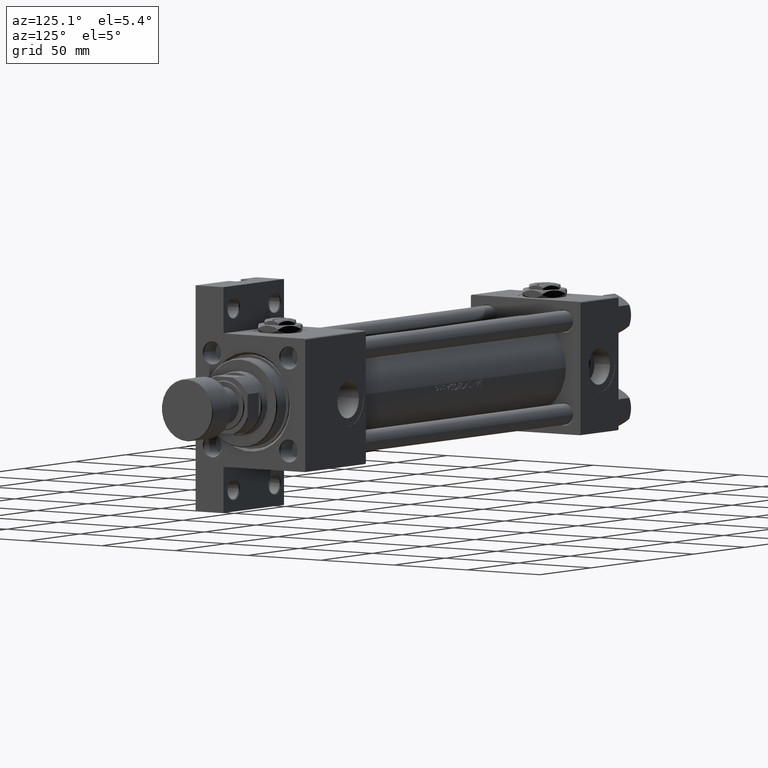
[diagram: clean part render]
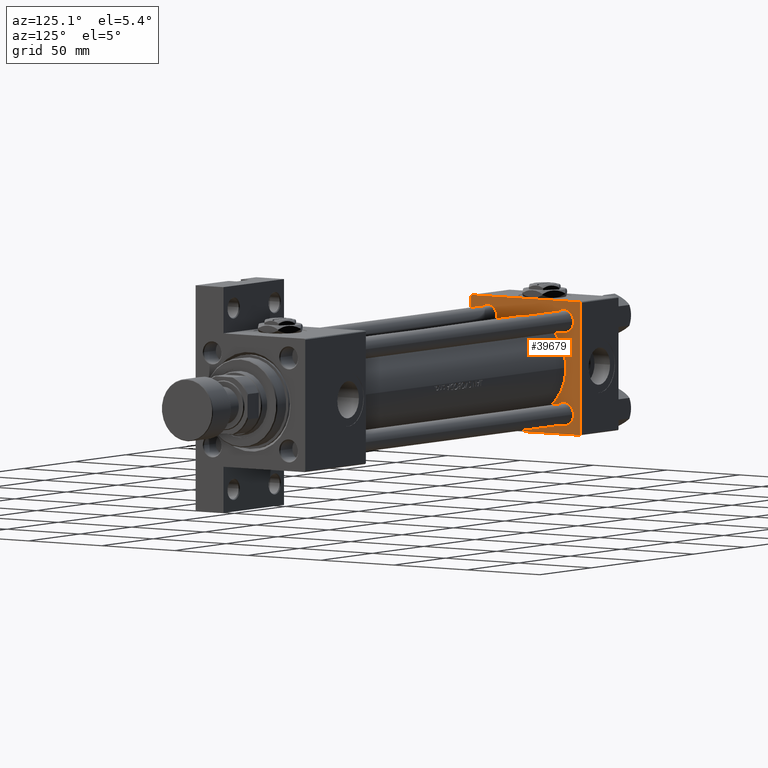
[diagram: same view with one face highlighted and labeled with its STEP entity id]
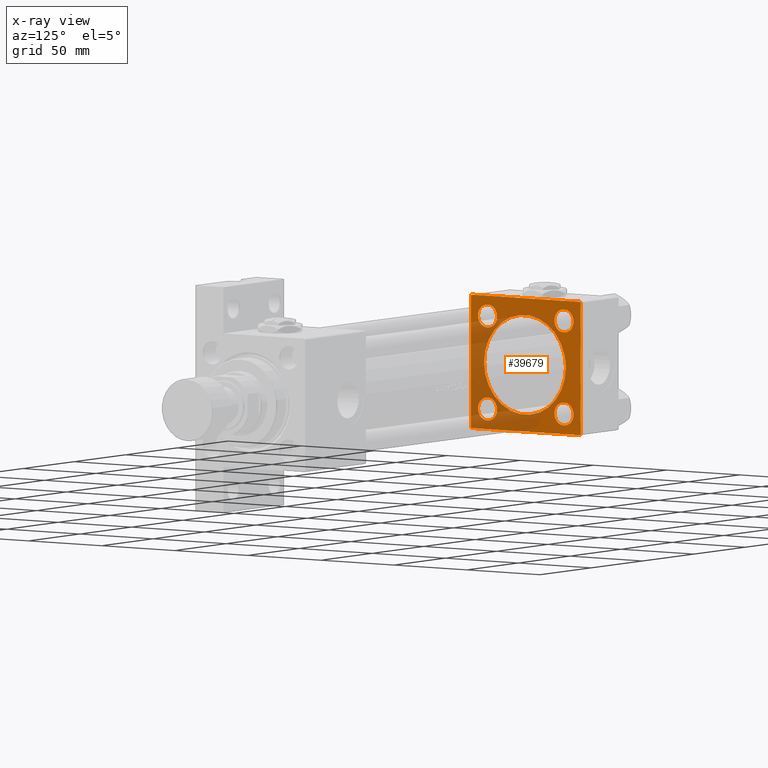
[diagram: x-ray of the same camera — body ghosted, the highlighted face saturated]
A machine part, auxiliary view. The second image highlights one B-rep face of the part: STEP entity #39679.
The next image is the same camera in x-ray: the body ghosted, the highlighted face saturated — about 38% of this face is hidden behind the body in this view.
In plain terms, the highlighted planar face has unit normal (-1, 0, -0).
Its self-contained STEP definition (entity closure, byte-faithful):
#209 = ORIENTED_EDGE ( 'NONE', *, *, #2922, .T. ) ;
#295 = CIRCLE ( 'NONE', #33496, 28.00000000000000000 ) ;
#547 = CARTESIAN_POINT ( 'NONE',  ( 37.00000000000000000, 37.49999999999999289, 37.00000000000000000 ) ) ;
#949 = CARTESIAN_POINT ( 'NONE',  ( 37.00000000000000711, 6.123233995736772199E-17, 27.50000000000000000 ) ) ;
#1322 = DIRECTION ( 'NONE',  ( 0.000000000000000000, 0.000000000000000000, -1.000000000000000000 ) ) ;
#1503 = FACE_OUTER_BOUND ( 'NONE', #11610, .T. ) ;
#1526 = ORIENTED_EDGE ( 'NONE', *, *, #33382, .T. ) ;
#1559 = ORIENTED_EDGE ( 'NONE', *, *, #33772, .T. ) ;
#1842 = ORIENTED_EDGE ( 'NONE', *, *, #2195, .T. ) ;
#2068 = CARTESIAN_POINT ( 'NONE',  ( 37.00000000000000000, -26.14999999999999147, 26.15000000000000924 ) ) ;
#2195 = EDGE_CURVE ( 'NONE', #14661, #13098, #37966, .T. ) ;
#2257 = CARTESIAN_POINT ( 'NONE',  ( 37.00000000000000000, 0.000000000000000000, 0.000000000000000000 ) ) ;
#2750 = EDGE_CURVE ( 'NONE', #30225, #12339, #43223, .T. ) ;
#2922 = EDGE_CURVE ( 'NONE', #42505, #34100, #6413, .T. ) ;
#2967 = EDGE_LOOP ( 'NONE', ( #11767, #11277 ) ) ;
#2994 = DIRECTION ( 'NONE',  ( -1.000000000000000000, 0.000000000000000000, -0.000000000000000000 ) ) ;
#3259 = DIRECTION ( 'NONE',  ( -1.000000000000000000, 0.000000000000000000, -0.000000000000000000 ) ) ;
#3271 = DIRECTION ( 'NONE',  ( 1.000000000000000000, -0.000000000000000000, 0.000000000000000000 ) ) ;
#3323 = CIRCLE ( 'NONE', #34114, 6.500000000000008882 ) ;
#3336 = AXIS2_PLACEMENT_3D ( 'NONE', #2257, #9371, #6319 ) ;
#3953 = ORIENTED_EDGE ( 'NONE', *, *, #25822, .T. ) ;
#4446 = AXIS2_PLACEMENT_3D ( 'NONE', #38273, #3271, #49436 ) ;
#4570 = LINE ( 'NONE', #18858, #16176 ) ;
#4859 = CIRCLE ( 'NONE', #28348, 6.500000000000085265 ) ;
#5051 = CARTESIAN_POINT ( 'NONE',  ( 37.00000000000000000, 37.49999999999999289, 37.50000000000000000 ) ) ;
#5411 = CARTESIAN_POINT ( 'NONE',  ( 37.00000000000000000, 37.49999999999999289, -36.99999999999998579 ) ) ;
#6038 = LINE ( 'NONE', #14163, #28995 ) ;
#6178 = ORIENTED_EDGE ( 'NONE', *, *, #35986, .F. ) ;
#6319 = DIRECTION ( 'NONE',  ( -0.000000000000000000, 0.000000000000000000, 1.000000000000000000 ) ) ;
#6413 = LINE ( 'NONE', #6671, #12081 ) ;
#6572 = CARTESIAN_POINT ( 'NONE',  ( 37.00000000000000000, -26.14999999999999147, -26.15000000000000924 ) ) ;
#6671 = CARTESIAN_POINT ( 'NONE',  ( 37.00000000000000000, -37.00000000000002132, -37.50000000000000711 ) ) ;
#7380 = CARTESIAN_POINT ( 'NONE',  ( 37.00000000000000000, 26.14999999999999858, 19.64999999999991331 ) ) ;
#7545 = DIRECTION ( 'NONE',  ( 0.000000000000000000, 0.000000000000000000, 1.000000000000000000 ) ) ;
#7695 = CIRCLE ( 'NONE', #4446, 28.00000000000000000 ) ;
#7944 = CIRCLE ( 'NONE', #13593, 6.500000000000085265 ) ;
#8546 = DIRECTION ( 'NONE',  ( -1.000000000000000000, 0.000000000000000000, -0.000000000000000000 ) ) ;
#8853 = DIRECTION ( 'NONE',  ( 0.000000000000000000, -1.000000000000000000, -9.251858538542971581E-17 ) ) ;
#9184 = EDGE_LOOP ( 'NONE', ( #50075, #12120 ) ) ;
#9371 = DIRECTION ( 'NONE',  ( -1.000000000000000000, 0.000000000000000000, -0.000000000000000000 ) ) ;
#9399 = DIRECTION ( 'NONE',  ( -1.000000000000000000, 0.000000000000000000, -0.000000000000000000 ) ) ;
#9519 = AXIS2_PLACEMENT_3D ( 'NONE', #2068, #14767, #29970 ) ;
#9579 = DIRECTION ( 'NONE',  ( 1.000000000000000000, -0.000000000000000000, 0.000000000000000000 ) ) ;
#9667 = CIRCLE ( 'NONE', #27513, 6.500000000000002665 ) ;
#9914 = EDGE_LOOP ( 'NONE', ( #1559, #3953 ) ) ;
#10349 = DIRECTION ( 'NONE',  ( 0.000000000000000000, 9.251858538542971581E-17, -1.000000000000000000 ) ) ;
#10408 = DIRECTION ( 'NONE',  ( -1.000000000000000000, 0.000000000000000000, -0.000000000000000000 ) ) ;
#10449 = AXIS2_PLACEMENT_3D ( 'NONE', #46097, #8546, #7545 ) ;
#10490 = EDGE_CURVE ( 'NONE', #31827, #41643, #24638, .T. ) ;
#10505 = EDGE_LOOP ( 'NONE', ( #1842, #31987 ) ) ;
#11161 = CARTESIAN_POINT ( 'NONE',  ( 37.00000000000000000, 26.14999999999999858, 32.65000000000009805 ) ) ;
#11265 = VECTOR ( 'NONE', #20149, 1000.000000000000114 ) ;
#11277 = ORIENTED_EDGE ( 'NONE', *, *, #10490, .T. ) ;
#11444 = ORIENTED_EDGE ( 'NONE', *, *, #23295, .T. ) ;
#11610 = EDGE_LOOP ( 'NONE', ( #6178, #19860, #38410, #40860, #1526, #28795, #11444, #209 ) ) ;
#11715 = EDGE_CURVE ( 'NONE', #49101, #27908, #16824, .T. ) ;
#11767 = ORIENTED_EDGE ( 'NONE', *, *, #31545, .T. ) ;
#12081 = VECTOR ( 'NONE', #37858, 1000.000000000000000 ) ;
#12120 = ORIENTED_EDGE ( 'NONE', *, *, #35407, .T. ) ;
#12339 = VERTEX_POINT ( 'NONE', #44818 ) ;
#13098 = VERTEX_POINT ( 'NONE', #11161 ) ;
#13331 = EDGE_CURVE ( 'NONE', #32873, #44498, #295, .T. ) ;
#13440 = PLANE ( 'NONE',  #3336 ) ;
#13446 = AXIS2_PLACEMENT_3D ( 'NONE', #24870, #9399, #37284 ) ;
#13593 = AXIS2_PLACEMENT_3D ( 'NONE', #29680, #10408, #41340 ) ;
#14163 = CARTESIAN_POINT ( 'NONE',  ( 37.00000000000000000, -37.50000000000000711, 37.49999999999999289 ) ) ;
#14661 = VERTEX_POINT ( 'NONE', #7380 ) ;
#14755 = CARTESIAN_POINT ( 'NONE',  ( 37.00000000000000000, 36.99999999999997868, -37.50000000000000000 ) ) ;
#14767 = DIRECTION ( 'NONE',  ( -1.000000000000000000, 0.000000000000000000, -0.000000000000000000 ) ) ;
#15757 = EDGE_CURVE ( 'NONE', #44498, #32873, #7695, .T. ) ;
#16176 = VECTOR ( 'NONE', #30267, 1000.000000000000000 ) ;
#16771 = VERTEX_POINT ( 'NONE', #20586 ) ;
#16824 = LINE ( 'NONE', #40389, #39125 ) ;
#18508 = VERTEX_POINT ( 'NONE', #41167 ) ;
#18639 = EDGE_CURVE ( 'NONE', #29674, #16771, #44206, .T. ) ;
#18727 = VECTOR ( 'NONE', #8853, 1000.000000000000000 ) ;
#18858 = CARTESIAN_POINT ( 'NONE',  ( 37.00000000000000000, 37.49999999999999289, -37.50000000000000000 ) ) ;
#19860 = ORIENTED_EDGE ( 'NONE', *, *, #2750, .T. ) ;
#20149 = DIRECTION ( 'NONE',  ( -0.000000000000000000, 0.7071067811865474617, 0.7071067811865474617 ) ) ;
#20586 = CARTESIAN_POINT ( 'NONE',  ( 37.00000000000000000, -26.14999999999999147, -19.65000000000000924 ) ) ;
#20614 = LINE ( 'NONE', #39634, #26698 ) ;
#20872 = DIRECTION ( 'NONE',  ( -0.000000000000000000, -0.7071067811865474617, -0.7071067811865474617 ) ) ;
#21374 = AXIS2_PLACEMENT_3D ( 'NONE', #36745, #2994, #37493 ) ;
#22294 = DIRECTION ( 'NONE',  ( 0.000000000000000000, 0.000000000000000000, 1.000000000000000000 ) ) ;
#22539 = DIRECTION ( 'NONE',  ( -1.000000000000000000, 0.000000000000000000, -0.000000000000000000 ) ) ;
#22774 = VERTEX_POINT ( 'NONE', #28249 ) ;
#22963 = EDGE_CURVE ( 'NONE', #13098, #14661, #7944, .T. ) ;
#23295 = EDGE_CURVE ( 'NONE', #27908, #42505, #6038, .T. ) ;
#23656 = CARTESIAN_POINT ( 'NONE',  ( 37.00000000000000000, -37.50000000000000711, 36.99999999999999289 ) ) ;
#24587 = VECTOR ( 'NONE', #44361, 1000.000000000000114 ) ;
#24638 = CIRCLE ( 'NONE', #21374, 6.500000000000085265 ) ;
#24846 = FACE_BOUND ( 'NONE', #9914, .T. ) ;
#24870 = CARTESIAN_POINT ( 'NONE',  ( 37.00000000000000000, -26.14999999999999147, -26.15000000000000924 ) ) ;
#25822 = EDGE_CURVE ( 'NONE', #27381, #18508, #33866, .T. ) ;
#25990 = ORIENTED_EDGE ( 'NONE', *, *, #15757, .F. ) ;
#26698 = VECTOR ( 'NONE', #1322, 1000.000000000000000 ) ;
#27381 = VERTEX_POINT ( 'NONE', #48647 ) ;
#27511 = CARTESIAN_POINT ( 'NONE',  ( 37.00000000000000000, -37.50000000000000000, -37.00000000000003553 ) ) ;
#27513 = AXIS2_PLACEMENT_3D ( 'NONE', #6572, #3259, #49928 ) ;
#27595 = CARTESIAN_POINT ( 'NONE',  ( 37.00000000000000000, -26.14999999999999147, 26.15000000000000924 ) ) ;
#27848 = VERTEX_POINT ( 'NONE', #547 ) ;
#27908 = VERTEX_POINT ( 'NONE', #23656 ) ;
#28080 = DIRECTION ( 'NONE',  ( -1.000000000000000000, 0.000000000000000000, -0.000000000000000000 ) ) ;
#28249 = CARTESIAN_POINT ( 'NONE',  ( 37.00000000000000000, 36.99999999999999289, 37.50000000000000000 ) ) ;
#28348 = AXIS2_PLACEMENT_3D ( 'NONE', #30160, #22539, #22294 ) ;
#28795 = ORIENTED_EDGE ( 'NONE', *, *, #11715, .T. ) ;
#28897 = CARTESIAN_POINT ( 'NONE',  ( 37.00000000000000000, 36.99999999999999289, 37.50000000000000000 ) ) ;
#28995 = VECTOR ( 'NONE', #10349, 1000.000000000000000 ) ;
#29652 = FACE_BOUND ( 'NONE', #10505, .T. ) ;
#29674 = VERTEX_POINT ( 'NONE', #49859 ) ;
#29680 = CARTESIAN_POINT ( 'NONE',  ( 37.00000000000000000, 26.14999999999999858, 26.15000000000000213 ) ) ;
#29970 = DIRECTION ( 'NONE',  ( 0.000000000000000000, 0.000000000000000000, 1.000000000000000000 ) ) ;
#30160 = CARTESIAN_POINT ( 'NONE',  ( 37.00000000000000000, 26.14999999999999858, -26.15000000000000213 ) ) ;
#30225 = VERTEX_POINT ( 'NONE', #14755 ) ;
#30267 = DIRECTION ( 'NONE',  ( 0.000000000000000000, -1.000000000000000000, -9.251858538542972814E-17 ) ) ;
#31545 = EDGE_CURVE ( 'NONE', #41643, #31827, #4859, .T. ) ;
#31827 = VERTEX_POINT ( 'NONE', #32153 ) ;
#31987 = ORIENTED_EDGE ( 'NONE', *, *, #22963, .T. ) ;
#32153 = CARTESIAN_POINT ( 'NONE',  ( 37.00000000000000000, 26.14999999999999858, -19.64999999999991687 ) ) ;
#32873 = VERTEX_POINT ( 'NONE', #40087 ) ;
#33382 = EDGE_CURVE ( 'NONE', #22774, #49101, #43596, .T. ) ;
#33496 = AXIS2_PLACEMENT_3D ( 'NONE', #44326, #9579, #40520 ) ;
#33772 = EDGE_CURVE ( 'NONE', #18508, #27381, #3323, .T. ) ;
#33866 = CIRCLE ( 'NONE', #9519, 6.500000000000008882 ) ;
#34100 = VERTEX_POINT ( 'NONE', #43725 ) ;
#34114 = AXIS2_PLACEMENT_3D ( 'NONE', #27595, #28080, #43542 ) ;
#34850 = ORIENTED_EDGE ( 'NONE', *, *, #13331, .F. ) ;
#35407 = EDGE_CURVE ( 'NONE', #16771, #29674, #9667, .T. ) ;
#35809 = EDGE_CURVE ( 'NONE', #27848, #12339, #20614, .T. ) ;
#35986 = EDGE_CURVE ( 'NONE', #30225, #34100, #4570, .T. ) ;
#36745 = CARTESIAN_POINT ( 'NONE',  ( 37.00000000000000000, 26.14999999999999858, -26.15000000000000213 ) ) ;
#37005 = FACE_BOUND ( 'NONE', #42958, .T. ) ;
#37284 = DIRECTION ( 'NONE',  ( 0.000000000000000000, 0.000000000000000000, 1.000000000000000000 ) ) ;
#37493 = DIRECTION ( 'NONE',  ( 0.000000000000000000, 0.000000000000000000, 1.000000000000000000 ) ) ;
#37858 = DIRECTION ( 'NONE',  ( 0.000000000000000000, 0.7071067811865524577, -0.7071067811865426878 ) ) ;
#37966 = CIRCLE ( 'NONE', #10449, 6.500000000000085265 ) ;
#38273 = CARTESIAN_POINT ( 'NONE',  ( 37.00000000000000711, 6.123233995736772199E-17, -0.5000000000000004441 ) ) ;
#38410 = ORIENTED_EDGE ( 'NONE', *, *, #35809, .F. ) ;
#38847 = CARTESIAN_POINT ( 'NONE',  ( 37.00000000000000000, 26.14999999999999858, -32.65000000000009095 ) ) ;
#39125 = VECTOR ( 'NONE', #20872, 1000.000000000000114 ) ;
#39634 = CARTESIAN_POINT ( 'NONE',  ( 37.00000000000000000, 37.49999999999999289, 37.50000000000000000 ) ) ;
#39679 = ADVANCED_FACE ( 'NONE', ( #44362, #40806, #24846, #29652, #37005, #1503 ), #13440, .F. ) ;
#39820 = LINE ( 'NONE', #28897, #24587 ) ;
#40087 = CARTESIAN_POINT ( 'NONE',  ( 37.00000000000000711, 3.490243377569956456E-15, -28.50000000000000000 ) ) ;
#40306 = CARTESIAN_POINT ( 'NONE',  ( 37.00000000000000000, -37.00000000000000711, 37.49999999999999289 ) ) ;
#40389 = CARTESIAN_POINT ( 'NONE',  ( 37.00000000000000000, -37.50000000000000711, 36.99999999999999289 ) ) ;
#40520 = DIRECTION ( 'NONE',  ( 0.000000000000000000, 0.000000000000000000, 1.000000000000000000 ) ) ;
#40806 = FACE_BOUND ( 'NONE', #2967, .T. ) ;
#40860 = ORIENTED_EDGE ( 'NONE', *, *, #49007, .T. ) ;
#41167 = CARTESIAN_POINT ( 'NONE',  ( 37.00000000000000000, -26.14999999999999147, 19.65000000000000213 ) ) ;
#41340 = DIRECTION ( 'NONE',  ( 0.000000000000000000, 0.000000000000000000, 1.000000000000000000 ) ) ;
#41643 = VERTEX_POINT ( 'NONE', #38847 ) ;
#42505 = VERTEX_POINT ( 'NONE', #27511 ) ;
#42958 = EDGE_LOOP ( 'NONE', ( #25990, #34850 ) ) ;
#43223 = LINE ( 'NONE', #5411, #11265 ) ;
#43542 = DIRECTION ( 'NONE',  ( 0.000000000000000000, 0.000000000000000000, 1.000000000000000000 ) ) ;
#43596 = LINE ( 'NONE', #5051, #18727 ) ;
#43725 = CARTESIAN_POINT ( 'NONE',  ( 37.00000000000000000, -37.00000000000002132, -37.50000000000000711 ) ) ;
#44206 = CIRCLE ( 'NONE', #13446, 6.500000000000002665 ) ;
#44326 = CARTESIAN_POINT ( 'NONE',  ( 37.00000000000000711, 6.123233995736772199E-17, -0.5000000000000004441 ) ) ;
#44361 = DIRECTION ( 'NONE',  ( 0.000000000000000000, -0.7071067811865474617, 0.7071067811865474617 ) ) ;
#44362 = FACE_BOUND ( 'NONE', #9184, .T. ) ;
#44498 = VERTEX_POINT ( 'NONE', #949 ) ;
#44818 = CARTESIAN_POINT ( 'NONE',  ( 37.00000000000000000, 37.49999999999999289, -36.99999999999998579 ) ) ;
#46097 = CARTESIAN_POINT ( 'NONE',  ( 37.00000000000000000, 26.14999999999999858, 26.15000000000000213 ) ) ;
#48647 = CARTESIAN_POINT ( 'NONE',  ( 37.00000000000000000, -26.14999999999999147, 32.65000000000001990 ) ) ;
#49007 = EDGE_CURVE ( 'NONE', #27848, #22774, #39820, .T. ) ;
#49101 = VERTEX_POINT ( 'NONE', #40306 ) ;
#49436 = DIRECTION ( 'NONE',  ( 0.000000000000000000, 0.000000000000000000, 1.000000000000000000 ) ) ;
#49859 = CARTESIAN_POINT ( 'NONE',  ( 37.00000000000000000, -26.14999999999999147, -32.65000000000001279 ) ) ;
#49928 = DIRECTION ( 'NONE',  ( 0.000000000000000000, 0.000000000000000000, 1.000000000000000000 ) ) ;
#50075 = ORIENTED_EDGE ( 'NONE', *, *, #18639, .T. ) ;